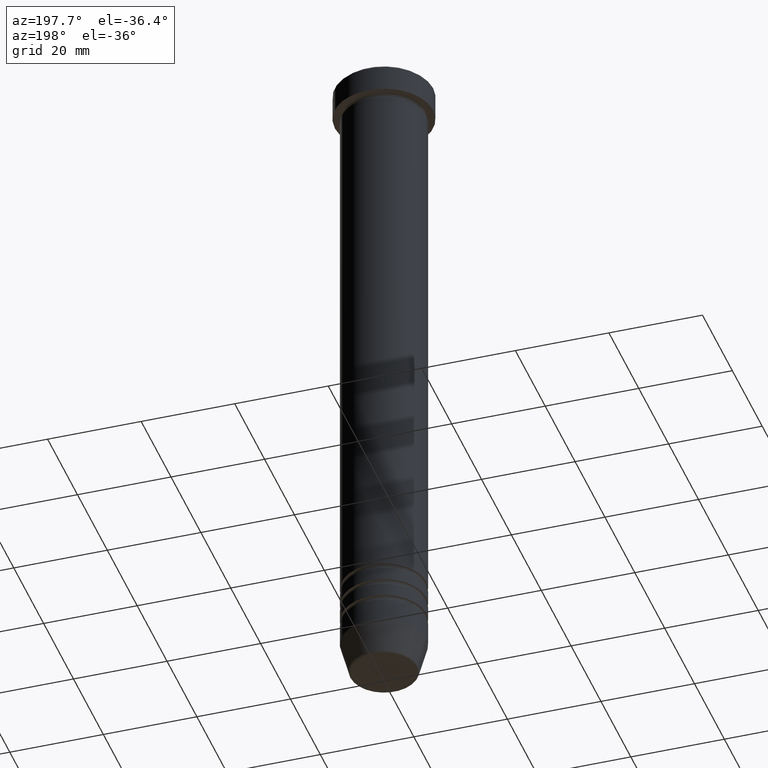
[diagram: clean part render]
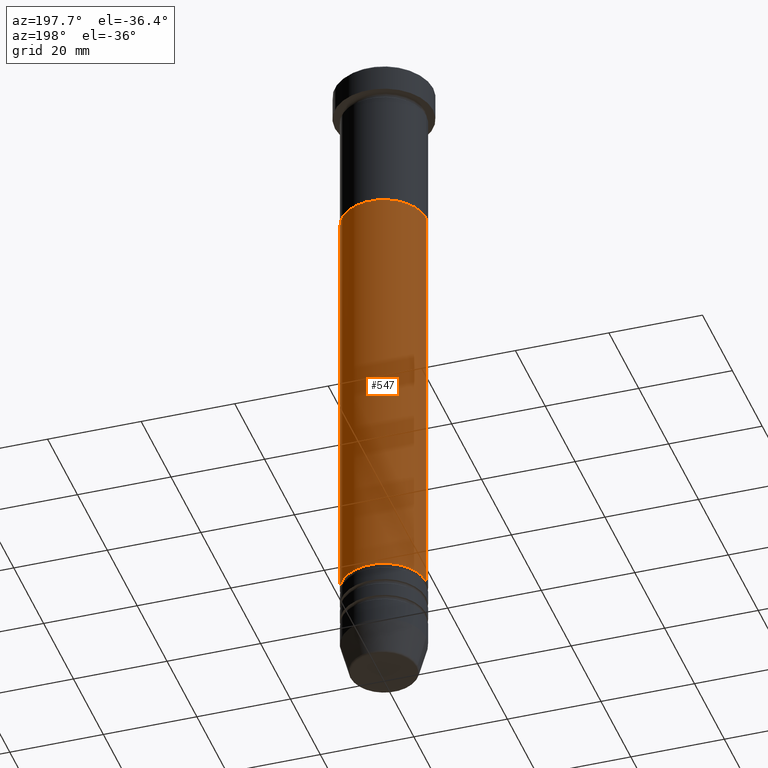
[diagram: same view with one face highlighted and labeled with its STEP entity id]
A machine part, auxiliary view. The second image highlights one B-rep face of the part: STEP entity #547.
In plain terms, the highlighted cylindrical surface (partial cylindrical patch) has radius 9 mm, axis along (-0, -0, 1).
Its self-contained STEP definition (entity closure, byte-faithful):
#25 = DIRECTION ( 'NONE',  ( -0.000000000000000000, -0.000000000000000000, 1.000000000000000000 ) ) ;
#52 = VERTEX_POINT ( 'NONE', #700 ) ;
#60 = VECTOR ( 'NONE', #25, 1000.000000000000000 ) ;
#169 = ORIENTED_EDGE ( 'NONE', *, *, #1029, .F. ) ;
#176 = CARTESIAN_POINT ( 'NONE',  ( 0.000000000000000000, 0.000000000000000000, -33.00000000000000000 ) ) ;
#182 = DIRECTION ( 'NONE',  ( -0.000000000000000000, -0.000000000000000000, 1.000000000000000000 ) ) ;
#213 = LINE ( 'NONE', #558, #60 ) ;
#243 = CYLINDRICAL_SURFACE ( 'NONE', #849, 8.999999999999996447 ) ;
#246 = EDGE_CURVE ( 'NONE', #52, #868, #962, .T. ) ;
#255 = EDGE_CURVE ( 'NONE', #52, #582, #965, .T. ) ;
#278 = AXIS2_PLACEMENT_3D ( 'NONE', #802, #983, #343 ) ;
#334 = CARTESIAN_POINT ( 'NONE',  ( 0.000000000000000000, 0.000000000000000000, 0.000000000000000000 ) ) ;
#343 = DIRECTION ( 'NONE',  ( 1.000000000000000000, 0.000000000000000000, 0.000000000000000000 ) ) ;
#371 = EDGE_CURVE ( 'NONE', #582, #680, #213, .T. ) ;
#378 = ORIENTED_EDGE ( 'NONE', *, *, #246, .F. ) ;
#406 = DIRECTION ( 'NONE',  ( -0.000000000000000000, -0.000000000000000000, 1.000000000000000000 ) ) ;
#431 = CIRCLE ( 'NONE', #947, 9.000000000000000000 ) ;
#486 = DIRECTION ( 'NONE',  ( 1.000000000000000000, 0.000000000000000000, 0.000000000000000000 ) ) ;
#488 = EDGE_LOOP ( 'NONE', ( #562, #909, #169, #378 ) ) ;
#517 = VECTOR ( 'NONE', #182, 1000.000000000000000 ) ;
#547 = ADVANCED_FACE ( 'NONE', ( #686 ), #243, .T. ) ;
#558 = CARTESIAN_POINT ( 'NONE',  ( -8.999999999999996447, 1.102182119232617319E-15, 0.000000000000000000 ) ) ;
#562 = ORIENTED_EDGE ( 'NONE', *, *, #255, .T. ) ;
#582 = VERTEX_POINT ( 'NONE', #1108 ) ;
#660 = DIRECTION ( 'NONE',  ( -0.000000000000000000, -0.000000000000000000, 1.000000000000000000 ) ) ;
#680 = VERTEX_POINT ( 'NONE', #815 ) ;
#686 = FACE_OUTER_BOUND ( 'NONE', #488, .T. ) ;
#700 = CARTESIAN_POINT ( 'NONE',  ( 8.999999999999992895, 0.000000000000000000, -125.0000000000000284 ) ) ;
#791 = CARTESIAN_POINT ( 'NONE',  ( 8.999999999999996447, 0.000000000000000000, 0.000000000000000000 ) ) ;
#802 = CARTESIAN_POINT ( 'NONE',  ( 0.000000000000000000, 0.000000000000000000, -125.0000000000000284 ) ) ;
#815 = CARTESIAN_POINT ( 'NONE',  ( -9.000000000000000000, 1.102182119232617911E-15, -33.00000000000000000 ) ) ;
#849 = AXIS2_PLACEMENT_3D ( 'NONE', #334, #660, #486 ) ;
#868 = VERTEX_POINT ( 'NONE', #1148 ) ;
#909 = ORIENTED_EDGE ( 'NONE', *, *, #371, .T. ) ;
#933 = DIRECTION ( 'NONE',  ( 1.000000000000000000, 0.000000000000000000, 0.000000000000000000 ) ) ;
#947 = AXIS2_PLACEMENT_3D ( 'NONE', #176, #406, #933 ) ;
#962 = LINE ( 'NONE', #791, #517 ) ;
#965 = CIRCLE ( 'NONE', #278, 8.999999999999992895 ) ;
#983 = DIRECTION ( 'NONE',  ( -0.000000000000000000, -0.000000000000000000, 1.000000000000000000 ) ) ;
#1029 = EDGE_CURVE ( 'NONE', #868, #680, #431, .T. ) ;
#1108 = CARTESIAN_POINT ( 'NONE',  ( -8.999999999999992895, 1.102182119232617122E-15, -125.0000000000000284 ) ) ;
#1148 = CARTESIAN_POINT ( 'NONE',  ( 9.000000000000000000, 0.000000000000000000, -33.00000000000000000 ) ) ;